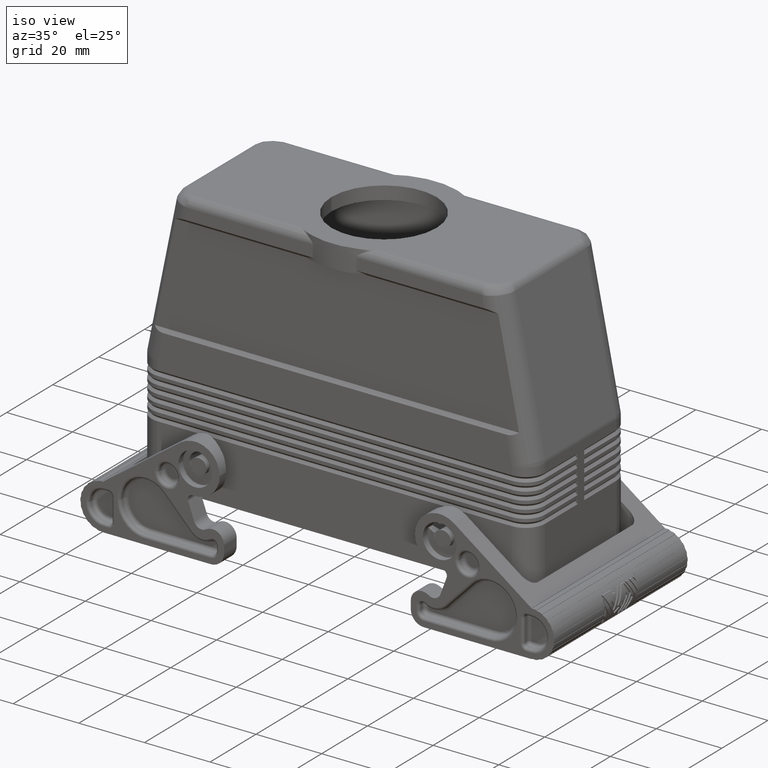
[diagram: clean part render]
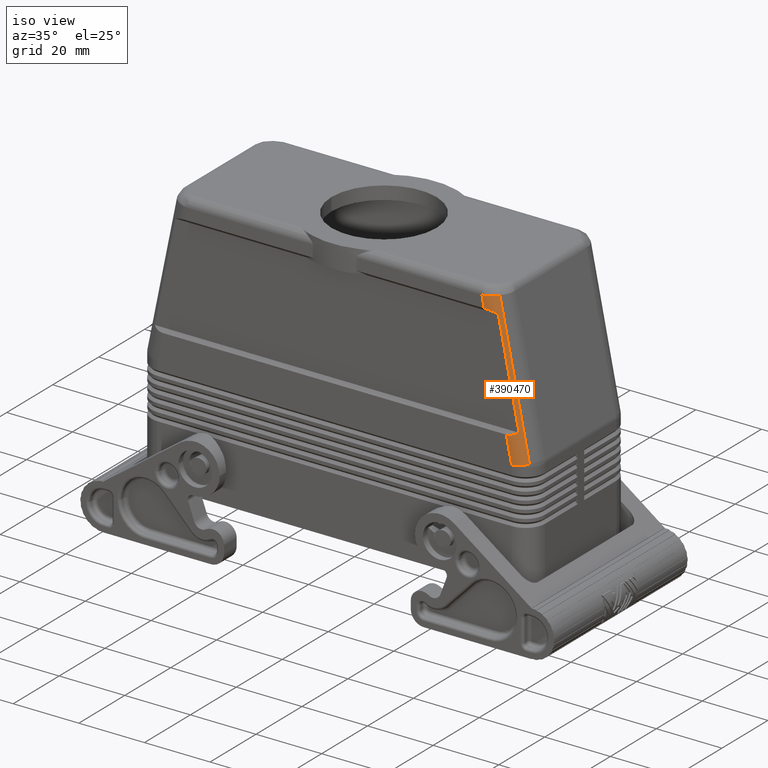
[diagram: same view with one face highlighted and labeled with its STEP entity id]
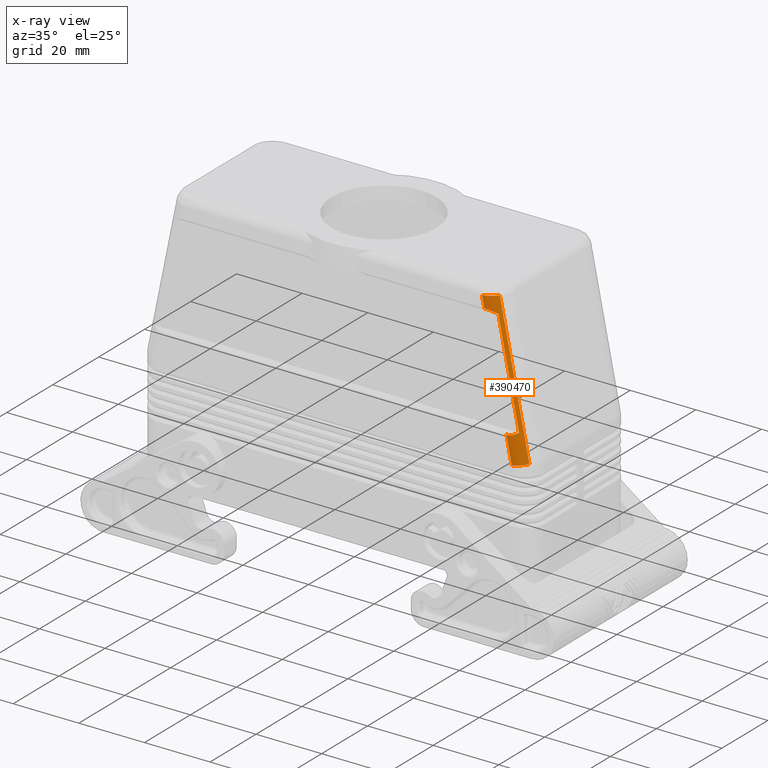
[diagram: x-ray of the same camera — body ghosted, the highlighted face saturated]
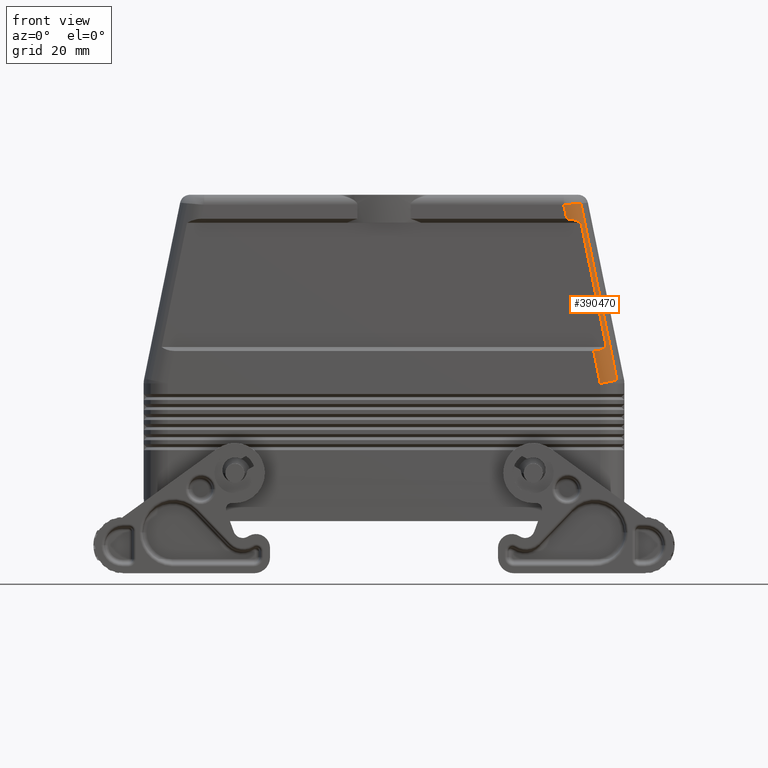
[diagram: same view with one face highlighted and labeled with its STEP entity id]
A machine part, iso view. The second image highlights one B-rep face of the part: STEP entity #390470.
The next image is the same camera in x-ray: the body ghosted, the highlighted face saturated — about 0% of this face is hidden behind the body in this view.
A second angle (front view) of the same face is appended — the face is thin or edge-on in the first view.
In plain terms, the highlighted cylindrical surface (edge-blend (fillet) strip) has radius 6 mm, axis along (0.2002, 0, -0.9798).
Its self-contained STEP definition (entity closure, byte-faithful):
#27960=CARTESIAN_POINT('',(52.5186710272441,-15.5,41.1440776664345));
#27970=DIRECTION('',(0.200166412454252,0.,-0.979761913591866));
#27980=DIRECTION('',(0.692796293049117,-0.707106781186547,
0.141539027612185));
#27990=AXIS2_PLACEMENT_3D('',#27960,#27970,#27980);
#28000=CYLINDRICAL_SURFACE('',#27990,6.);
#28110=CARTESIAN_POINT('',(54.,-15.5,33.8933621682081));
#28120=DIRECTION('',(-0.200166412454252,0.,0.979761913591866));
#28130=DIRECTION('',(0.,-1.,0.));
#28140=AXIS2_PLACEMENT_3D('',#28110,#28120,#28130);
#28150=CIRCLE('',#28140,6.);
#28160=CARTESIAN_POINT('',(58.1567777582947,-19.7426406871193,
34.7425963338812));
#28170=VERTEX_POINT('',#28160);
#28200=CARTESIAN_POINT('',(56.6754487855388,-19.7426406871193,
41.9933118321076));
#28210=DIRECTION('',(0.200166412454252,0.,-0.979761913591866));
#28220=VECTOR('',#28210,1.);
#28230=LINE('',#28200,#28220);
#28240=CARTESIAN_POINT('',(49.1448016995008,-19.7426406871193,
78.8538475690304));
#28250=VERTEX_POINT('',#28240);
#28260=EDGE_CURVE('',#28250,#28170,#28230,.T.);
#28280=CARTESIAN_POINT('',(44.8868159268382,-15.5,78.5));
#28290=DIRECTION('',(-0.082816630117557,-2.451865E-16,0.996564802597388)
);
#28300=DIRECTION('',(0.996564802597388,3.307266E-15,0.082816630117557));
#28310=AXIS2_PLACEMENT_3D('',#28280,#28290,#28300);
#28320=ELLIPSE('',#28310,6.04245826502848,6.);
#101140=CARTESIAN_POINT('',(54.,-21.5,33.8933621682081));
#101150=VERTEX_POINT('',#101140);
#102150=CARTESIAN_POINT('',(52.34380517415,-21.5,42.));
#102160=VERTEX_POINT('',#102150);
#102190=CARTESIAN_POINT('',(52.34380517415,-21.5,42.));
#102200=DIRECTION('',(0.200166412454251,0.,-0.979761913591866));
#102210=VECTOR('',#102200,8.27408957148837);
#102220=LINE('',#102190,#102210);
#102230=EDGE_CURVE('',#102160,#101150,#102220,.T.);
#102480=CARTESIAN_POINT('',(45.6018696902791,-21.5,75.));
#102490=VERTEX_POINT('',#102480);
#102520=CARTESIAN_POINT('',(46.827676141892,-15.5,68.9999999999999));
#102530=DIRECTION('',(2.775558E-17,0.707106781186551,0.707106781186545))
;
#102540=DIRECTION('',(-0.277571984143553,-0.679320908561853,
0.679320908561859));
#102550=AXIS2_PLACEMENT_3D('',#102520,#102530,#102540);
#102560=ELLIPSE('',#102550,8.6605544229935,6.);
#102570=CARTESIAN_POINT('',(49.191304178416,-20.5,74.));
#102580=VERTEX_POINT('',#102570);
#102590=EDGE_CURVE('',#102490,#102580,#102560,.T.);
#102970=CARTESIAN_POINT('',(44.8868159268382,-21.5,78.5));
#102980=VERTEX_POINT('',#102970);
#103010=CARTESIAN_POINT('',(44.8868159268382,-21.5,78.5));
#103020=DIRECTION('',(0.200166412454253,0.,-0.979761913591865));
#103030=VECTOR('',#103020,3.57229644411137);
#103040=LINE('',#103010,#103030);
#103050=EDGE_CURVE('',#102980,#102490,#103040,.T.);
#103650=CARTESIAN_POINT('',(55.5246375117493,-20.5,43.));
#103660=VERTEX_POINT('',#103650);
#103850=CARTESIAN_POINT('',(49.191304178416,-20.5,74.));
#103860=DIRECTION('',(0.200166412454252,0.,-0.979761913591866));
#103870=VECTOR('',#103860,31.6403399335581);
#103880=LINE('',#103850,#103870);
#103890=EDGE_CURVE('',#102580,#103660,#103880,.T.);
#104150=CARTESIAN_POINT('',(51.1179987225371,-15.5,48.));
#104160=DIRECTION('',(0.,0.707106781186548,-0.707106781186548));
#104170=DIRECTION('',(0.277571984143554,-0.679320908561856,
-0.679320908561856));
#104180=AXIS2_PLACEMENT_3D('',#104150,#104160,#104170);
#104190=ELLIPSE('',#104180,8.66055442299346,6.);
#104200=EDGE_CURVE('',#103660,#102160,#104190,.T.);
#104580=EDGE_CURVE('',#101150,#28170,#28150,.T.);
#107210=EDGE_CURVE('',#102980,#28250,#28320,.T.);
#390370=ORIENTED_EDGE('',*,*,#104580,.T.);
#390380=ORIENTED_EDGE('',*,*,#102230,.T.);
#390390=ORIENTED_EDGE('',*,*,#104200,.T.);
#390400=ORIENTED_EDGE('',*,*,#103890,.T.);
#390410=ORIENTED_EDGE('',*,*,#102590,.T.);
#390420=ORIENTED_EDGE('',*,*,#103050,.T.);
#390430=ORIENTED_EDGE('',*,*,#107210,.F.);
#390440=ORIENTED_EDGE('',*,*,#28260,.F.);
#390450=EDGE_LOOP('',(#390440,#390430,#390420,#390410,#390400,#390390,
#390380,#390370));
#390460=FACE_OUTER_BOUND('',#390450,.T.);
#390470=ADVANCED_FACE('',(#390460),#28000,.T.);